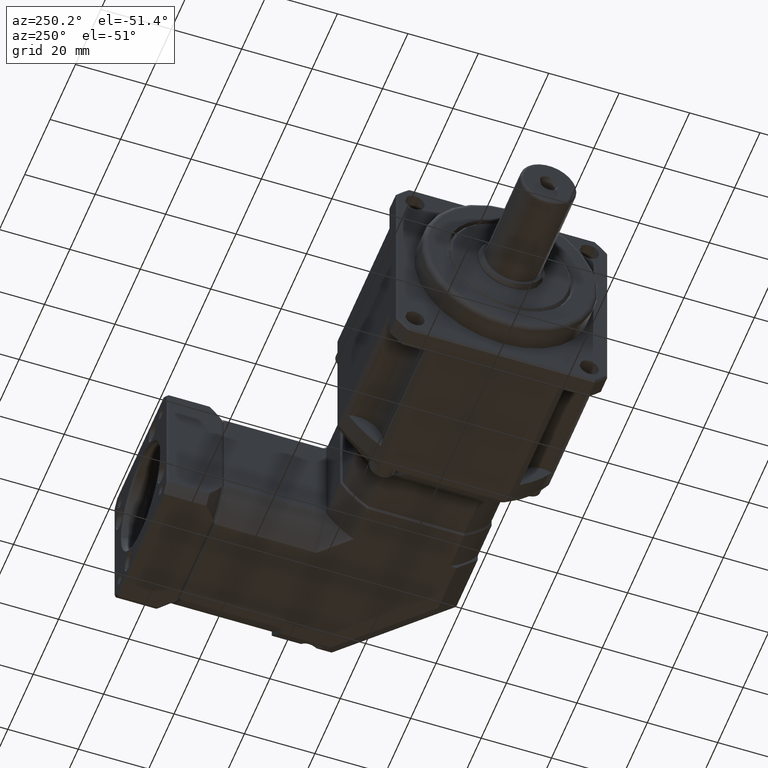
[diagram: clean part render]
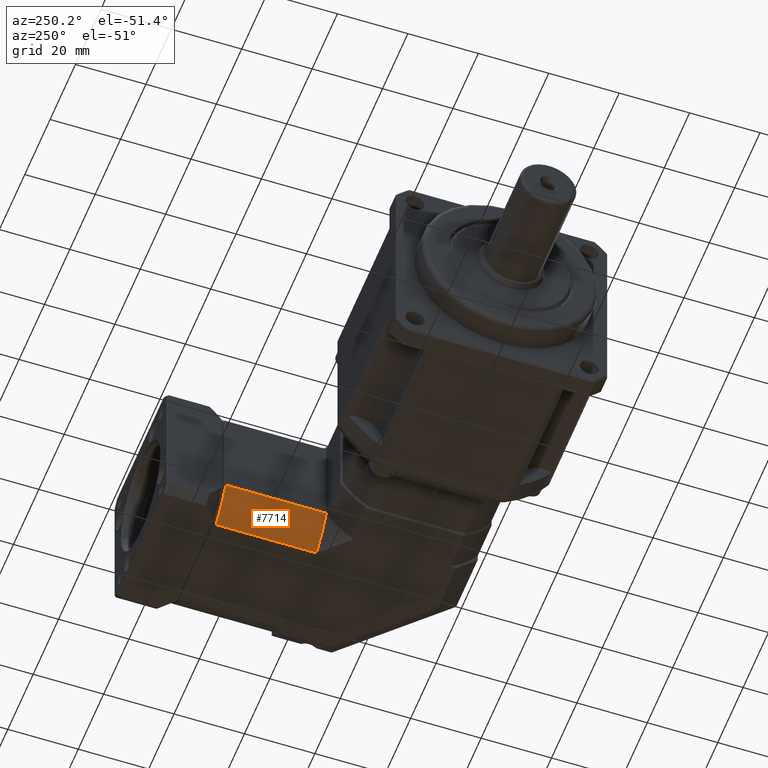
[diagram: same view with one face highlighted and labeled with its STEP entity id]
A machine part, auxiliary view. The second image highlights one B-rep face of the part: STEP entity #7714.
In plain terms, the highlighted cylindrical surface (partial cylindrical patch) has radius 25.5 mm, axis along (0, -1, -0).
Its self-contained STEP definition (entity closure, byte-faithful):
#623=LINE('',#12319,#1018);
#635=LINE('',#12408,#1030);
#1018=VECTOR('',#9914,28.5);
#1030=VECTOR('',#9996,28.5);
#1931=FACE_OUTER_BOUND('',#2555,.T.);
#2555=EDGE_LOOP('',(#5936,#5937,#5938,#5939));
#3090=CIRCLE('',#8383,25.5);
#3109=CIRCLE('',#8422,25.5);
#3579=VERTEX_POINT('',#12130);
#3580=VERTEX_POINT('',#12137);
#3631=VERTEX_POINT('',#12317);
#3633=VERTEX_POINT('',#12355);
#4389=EDGE_CURVE('',#3580,#3579,#3090,.T.);
#4462=EDGE_CURVE('',#3631,#3580,#623,.T.);
#4465=EDGE_CURVE('',#3631,#3633,#3109,.T.);
#4488=EDGE_CURVE('',#3579,#3633,#635,.T.);
#5936=ORIENTED_EDGE('',*,*,#4389,.F.);
#5937=ORIENTED_EDGE('',*,*,#4462,.F.);
#5938=ORIENTED_EDGE('',*,*,#4465,.T.);
#5939=ORIENTED_EDGE('',*,*,#4488,.F.);
#7051=CYLINDRICAL_SURFACE('',#8454,25.5);
#7714=ADVANCED_FACE('',(#1931),#7051,.T.);
#8383=AXIS2_PLACEMENT_3D('',#12142,#9795,#9796);
#8422=AXIS2_PLACEMENT_3D('',#12356,#9919,#9920);
#8454=AXIS2_PLACEMENT_3D('',#12407,#9994,#9995);
#9795=DIRECTION('center_axis',(-7.02824524377793E-16,1.,7.4313826553568E-16));
#9796=DIRECTION('ref_axis',(-1.,-7.02824524377793E-16,7.15864935837998E-17));
#9914=DIRECTION('',(-7.02824524377793E-16,1.,7.4313826553568E-16));
#9919=DIRECTION('center_axis',(-7.02824524377793E-16,1.,7.4313826553568E-16));
#9920=DIRECTION('ref_axis',(-1.,-7.02824524377793E-16,7.15864935837998E-17));
#9994=DIRECTION('center_axis',(7.02824524377793E-16,-1.,-7.4313826553568E-16));
#9995=DIRECTION('ref_axis',(-1.,-7.02824524377793E-16,7.15864935837998E-17));
#9996=DIRECTION('',(7.02824524377793E-16,-1.,-7.4313826553568E-16));
#12130=CARTESIAN_POINT('',(-23.9042359944646,68.2695502360663,-57.8861960134628));
#12137=CARTESIAN_POINT('',(-16.11554519519,68.2695502360663,-65.674886812696));
#12142=CARTESIAN_POINT('Origin',(-2.40423599447915,68.2695502360663,-44.1748868126378));
#12317=CARTESIAN_POINT('',(-16.11554519519,39.7695502360663,-65.6748868126961));
#12319=CARTESIAN_POINT('',(-16.11554519519,68.7695502360663,-65.674886812696));
#12355=CARTESIAN_POINT('',(-23.9042359944646,39.7695502360663,-57.8861960134982));
#12356=CARTESIAN_POINT('Origin',(-2.40423599447912,39.7695502360663,-44.1748868126379));
#12407=CARTESIAN_POINT('Origin',(-2.40423599447915,68.7695502360663,-44.1748868126378));
#12408=CARTESIAN_POINT('',(-23.9042359944646,68.7695502360663,-57.8861960134628));